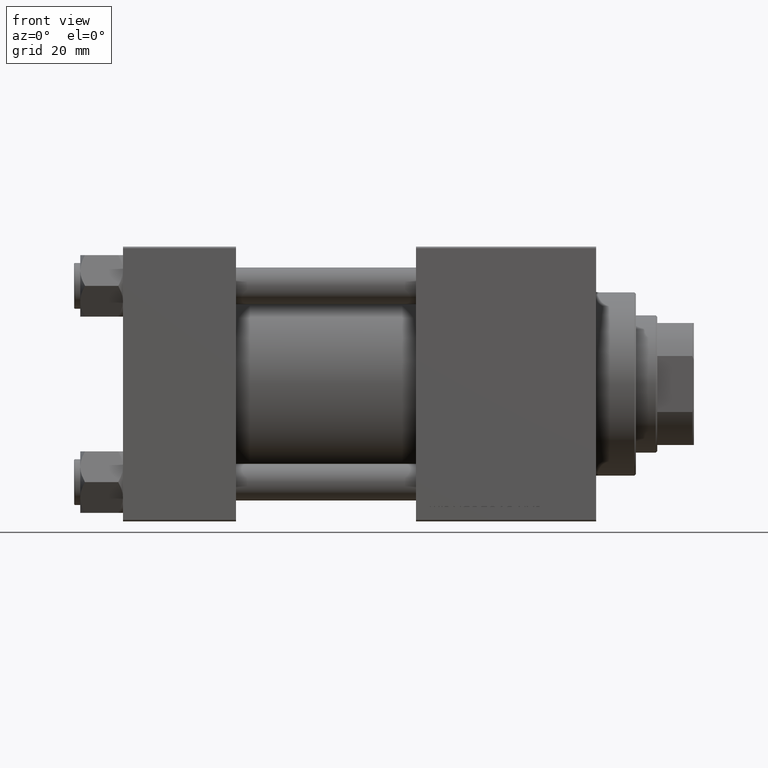
[diagram: clean part render]
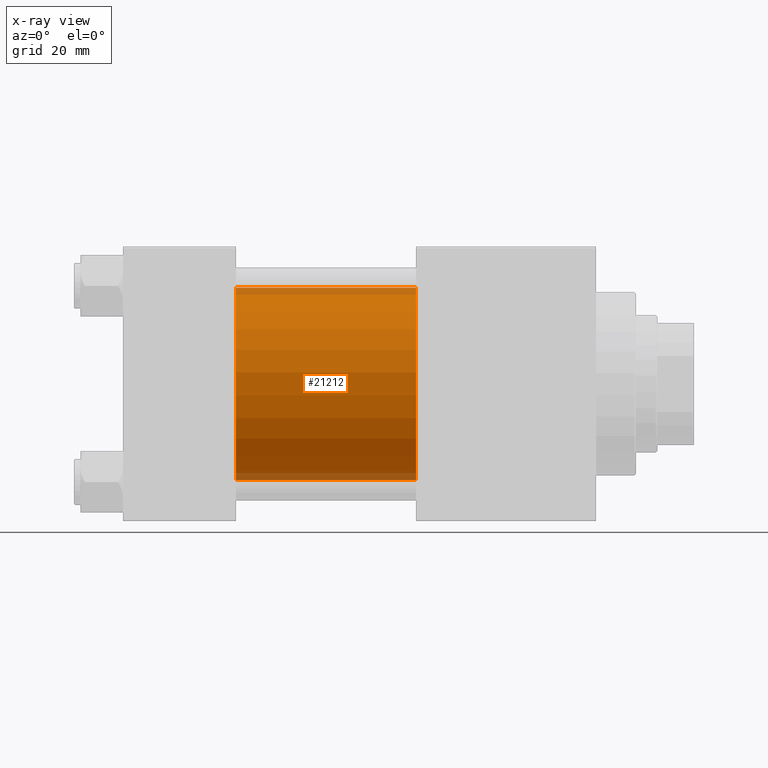
[diagram: x-ray — body ghosted, one internal face saturated and labeled with its STEP entity id]
A machine part, front view, then the same camera in x-ray: the body is ghosted and one INTERNAL B-rep face — a face not visible from any outside direction — is saturated and labeled: STEP entity #21212.
In plain terms, the highlighted cylindrical surface (partial cylindrical patch) has radius 31.5 mm, axis along (-1, -0, -0).
Its self-contained STEP definition (entity closure, byte-faithful):
#344 = ORIENTED_EDGE ( 'NONE', *, *, #17415, .T. ) ;
#1091 = ORIENTED_EDGE ( 'NONE', *, *, #48855, .T. ) ;
#1331 = VERTEX_POINT ( 'NONE', #5517 ) ;
#3203 = DIRECTION ( 'NONE',  ( -1.000000000000000000, -0.000000000000000000, -0.000000000000000000 ) ) ;
#3369 = CIRCLE ( 'NONE', #25233, 31.50000000000000000 ) ;
#3751 = VERTEX_POINT ( 'NONE', #5175 ) ;
#5175 = CARTESIAN_POINT ( 'NONE',  ( 37.00000000000000000, 1.255552203348951850E-15, -31.50000000000000000 ) ) ;
#5224 = EDGE_LOOP ( 'NONE', ( #1091, #344, #43618, #15878 ) ) ;
#5517 = CARTESIAN_POINT ( 'NONE',  ( 37.00000000000000000, -2.602085213965210642E-15, 31.50000000000000000 ) ) ;
#6957 = DIRECTION ( 'NONE',  ( 0.000000000000000000, 0.000000000000000000, 1.000000000000000000 ) ) ;
#7040 = DIRECTION ( 'NONE',  ( 1.000000000000000000, 0.000000000000000000, 0.000000000000000000 ) ) ;
#7581 = EDGE_CURVE ( 'NONE', #1331, #3751, #3369, .T. ) ;
#10357 = DIRECTION ( 'NONE',  ( 0.000000000000000000, 0.000000000000000000, -1.000000000000000000 ) ) ;
#11508 = CARTESIAN_POINT ( 'NONE',  ( 96.00000000000000000, -2.602085213965210642E-15, 0.000000000000000000 ) ) ;
#12460 = CIRCLE ( 'NONE', #40786, 31.50000000000000000 ) ;
#12860 = CARTESIAN_POINT ( 'NONE',  ( 96.00000000000000000, 1.255552203348951850E-15, -31.50000000000000000 ) ) ;
#15025 = AXIS2_PLACEMENT_3D ( 'NONE', #11508, #15568, #6957 ) ;
#15440 = VERTEX_POINT ( 'NONE', #12860 ) ;
#15568 = DIRECTION ( 'NONE',  ( -1.000000000000000000, -0.000000000000000000, -0.000000000000000000 ) ) ;
#15878 = ORIENTED_EDGE ( 'NONE', *, *, #16907, .F. ) ;
#16907 = EDGE_CURVE ( 'NONE', #36227, #1331, #42137, .T. ) ;
#17415 = EDGE_CURVE ( 'NONE', #15440, #3751, #41465, .T. ) ;
#18148 = VECTOR ( 'NONE', #3203, 1000.000000000000000 ) ;
#18610 = FACE_OUTER_BOUND ( 'NONE', #5224, .T. ) ;
#19092 = DIRECTION ( 'NONE',  ( -1.000000000000000000, -0.000000000000000000, -0.000000000000000000 ) ) ;
#21212 = ADVANCED_FACE ( 'NONE', ( #18610 ), #22909, .F. ) ;
#22710 = CARTESIAN_POINT ( 'NONE',  ( 96.00000000000000000, 1.255552203348951850E-15, -31.50000000000000000 ) ) ;
#22909 = CYLINDRICAL_SURFACE ( 'NONE', #15025, 31.50000000000000000 ) ;
#24431 = CARTESIAN_POINT ( 'NONE',  ( 96.00000000000000000, -2.602085213965210642E-15, 31.50000000000000000 ) ) ;
#24735 = DIRECTION ( 'NONE',  ( 1.000000000000000000, 0.000000000000000000, 0.000000000000000000 ) ) ;
#25233 = AXIS2_PLACEMENT_3D ( 'NONE', #42797, #24735, #40190 ) ;
#36227 = VERTEX_POINT ( 'NONE', #24431 ) ;
#36724 = VECTOR ( 'NONE', #19092, 1000.000000000000000 ) ;
#38599 = CARTESIAN_POINT ( 'NONE',  ( 96.00000000000000000, -2.602085213965210642E-15, 31.50000000000000000 ) ) ;
#40190 = DIRECTION ( 'NONE',  ( 0.000000000000000000, 0.000000000000000000, -1.000000000000000000 ) ) ;
#40786 = AXIS2_PLACEMENT_3D ( 'NONE', #45082, #7040, #10357 ) ;
#41465 = LINE ( 'NONE', #22710, #18148 ) ;
#42137 = LINE ( 'NONE', #38599, #36724 ) ;
#42797 = CARTESIAN_POINT ( 'NONE',  ( 37.00000000000000000, -2.602085213965210642E-15, 0.000000000000000000 ) ) ;
#43618 = ORIENTED_EDGE ( 'NONE', *, *, #7581, .F. ) ;
#45082 = CARTESIAN_POINT ( 'NONE',  ( 96.00000000000000000, -2.602085213965210642E-15, 0.000000000000000000 ) ) ;
#48855 = EDGE_CURVE ( 'NONE', #36227, #15440, #12460, .T. ) ;